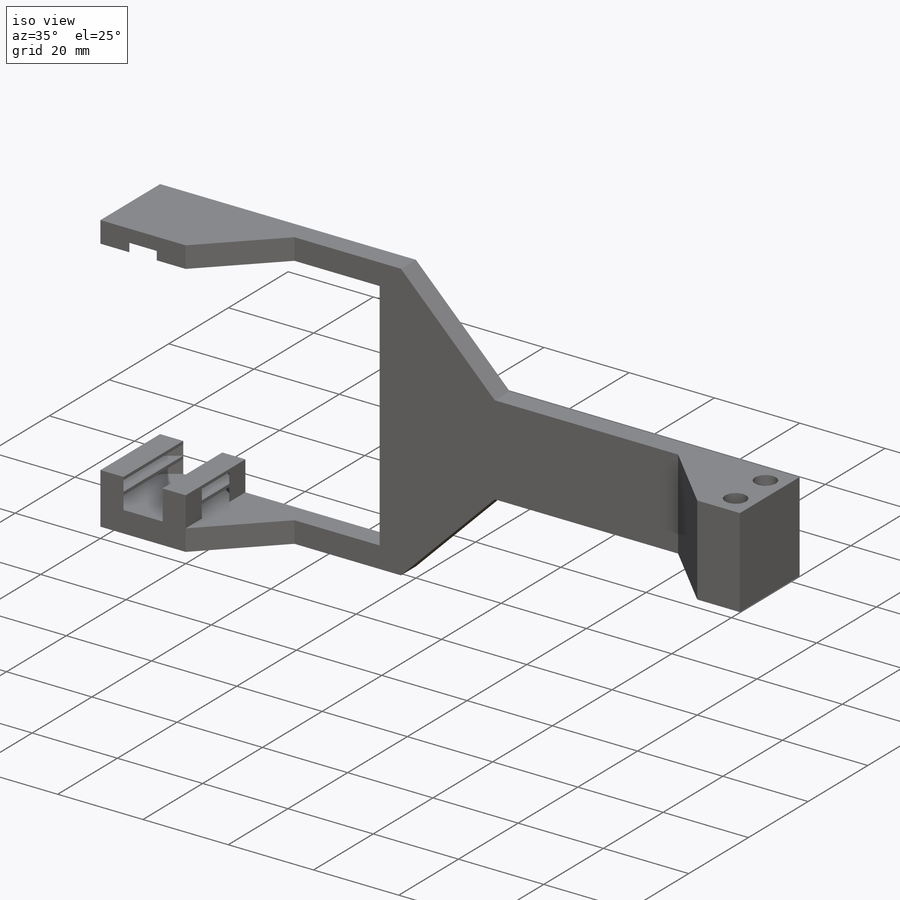
[diagram: iso view]
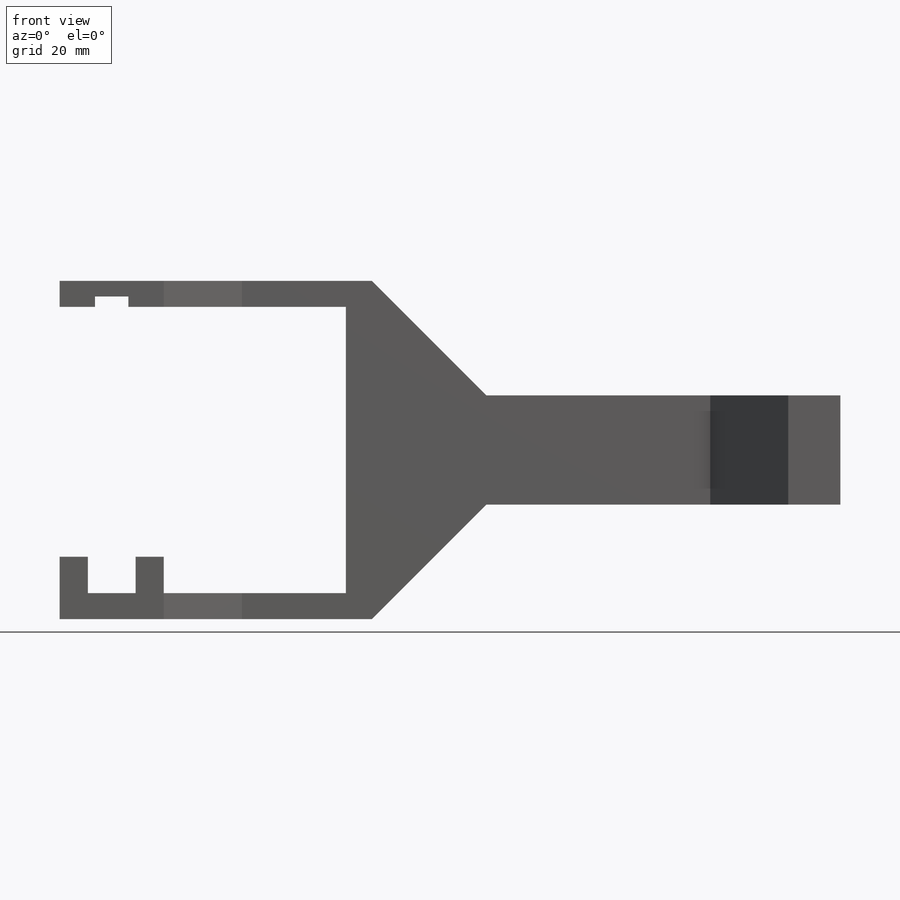
[diagram: front view]
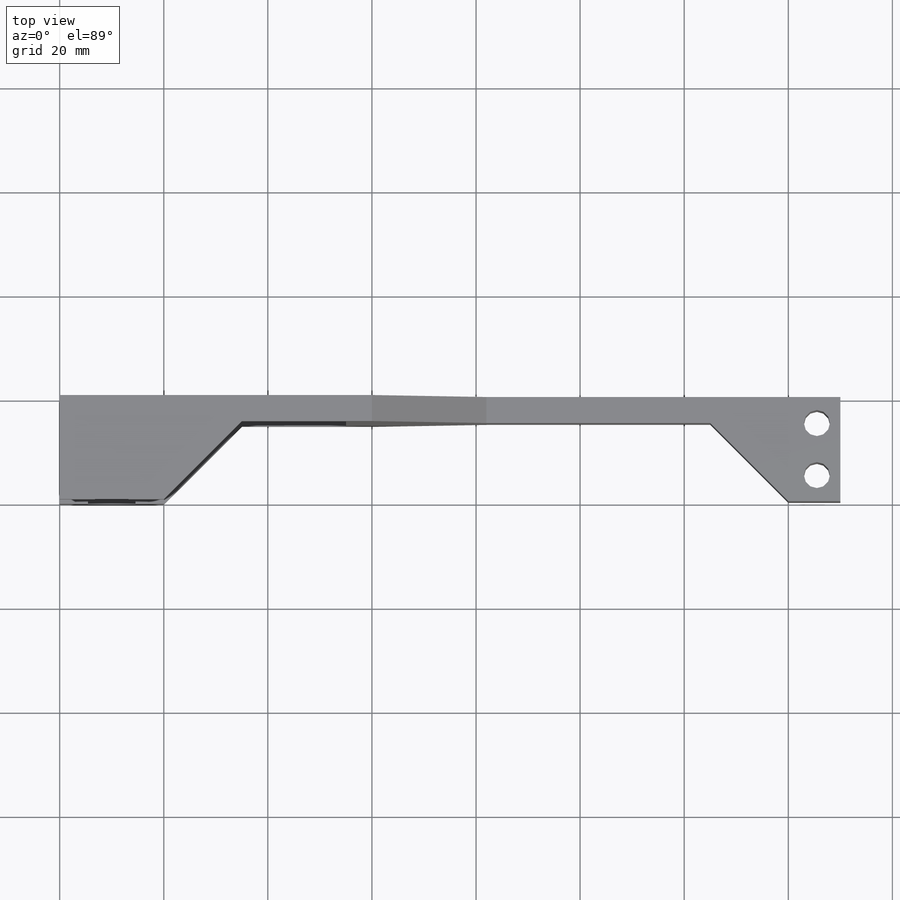
[diagram: top view]
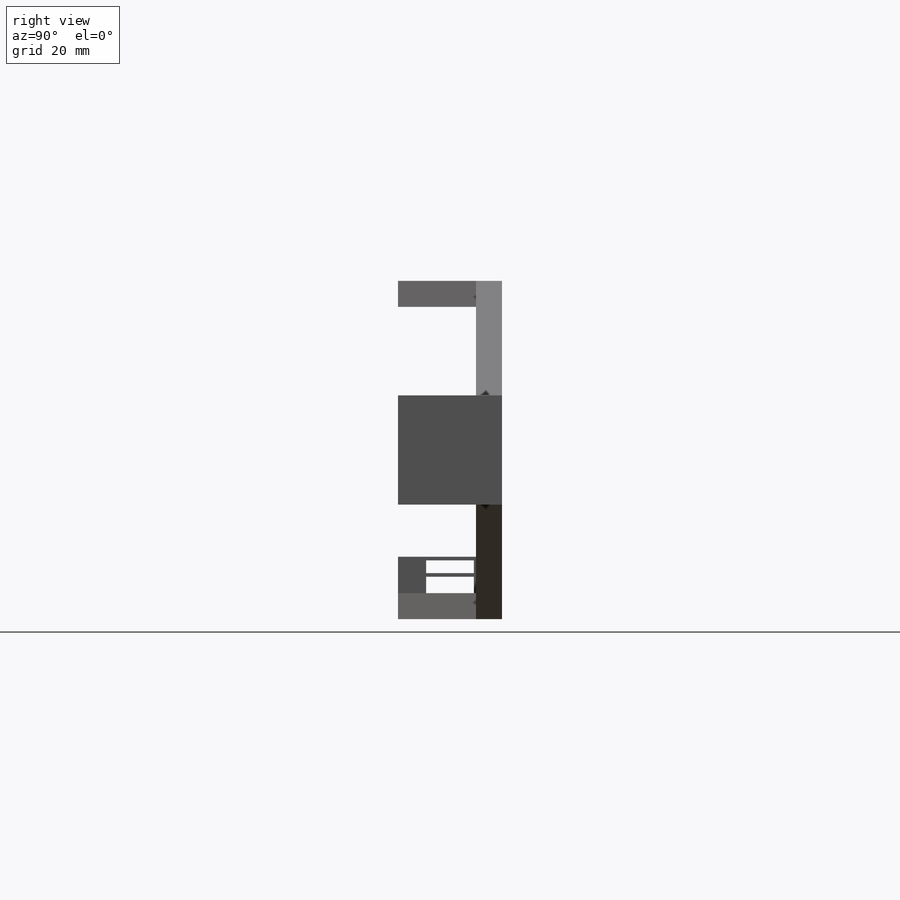
[diagram: right view]
SOLIDWORKS PART (.sldprt)
format: sldprt  version: not decoded by parser v0  size: 200,192 bytes
history: native  units: mm
features: sketch x7, cut_extrude x4, plane x3, extrude x3, material x1 (+10 scaffold rows collapsed)
feature tree (28):
  scaffold x10  (default folders/planes/origin — collapsed)
  material  "Matériau <non spécifié>"
  plane  "Face"
  plane  "Dessus"
  plane  "Droite"
  sketch  "Esquisse2"  dims[c1.D1=150.0mm c1.D2=55.0mm c1.D3=5.0mm c1.D4=~80.702871mm c2.D4=45.0deg c2.D5=5.0mm c2.D6=21.0mm c2.D7=55.0mm]
  extrude  "Extrusion1"  Depth=20mm
  sketch  "Esquisse3"  dims[D1=5.0mm D2=4.5mm D3=10.0mm]
  cut_extrude  "Enlèv. mat.-Extru.1"  [1 undecoded]
  sketch  "Esquisse4"  dims[c1.D1=~16.226862mm c2.D1=45.0deg c2.D2=~19.899522mm c3.D2=45.0deg c3.D3=5.0mm c3.D4=20.0mm c3.D5=10.0mm]
  cut_extrude  "Enlèv. mat.-Extru.2"  [1 undecoded]
  sketch  "Esquisse5"  dims[D1=21.0mm]
  cut_extrude  "Enlèv. mat.-Extru.3"  Depth=2mm
  sketch  "Esquisse6"  dims[D1=22.0mm]
  extrude  "Extrusion2"  Depth=7mm
  sketch  "Esquisse7"  dims[D1=0.7mm D2=20.0mm]
  extrude  "Extrusion3"  [1 undecoded]
  sketch  "Esquisse8"
  cut_extrude  "Enlèv. mat.-Extru.4"  [1 undecoded]
decode coverage: 9 of 14 modeling features carry decoded parameters
note: ~ marks probable driven/reference dimensions
note: 4 parameter values undecoded
summary: no parameter record found for 4 features
note: suppression state not decoded; provenance and decode notes live in map.json
